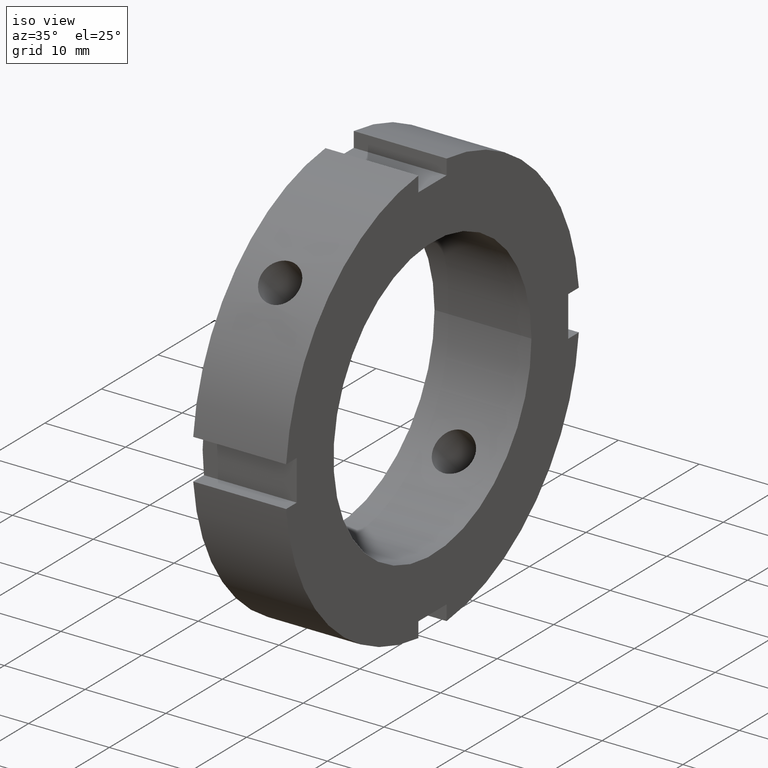
[diagram: clean part render]
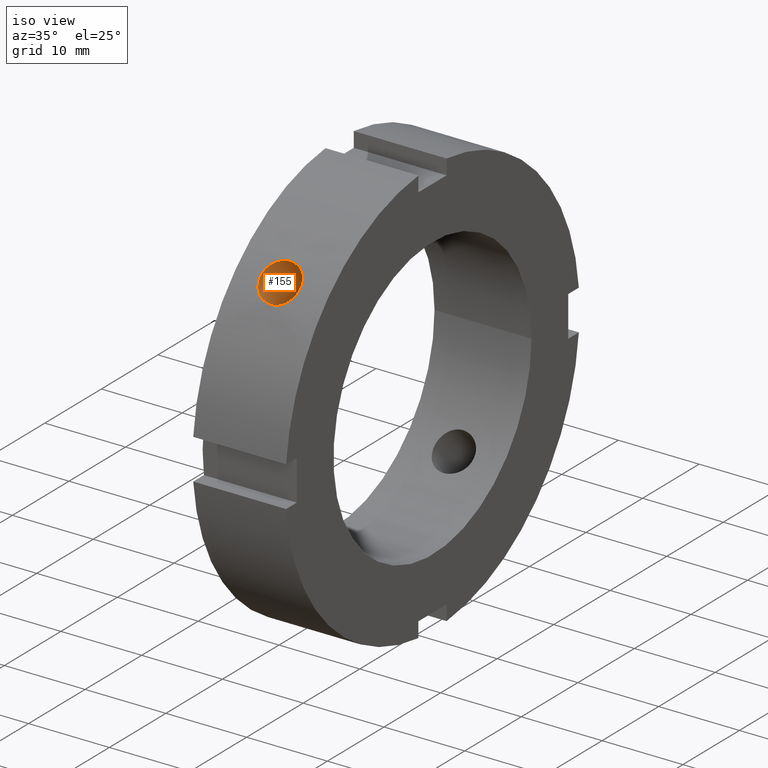
[diagram: same view with one face highlighted and labeled with its STEP entity id]
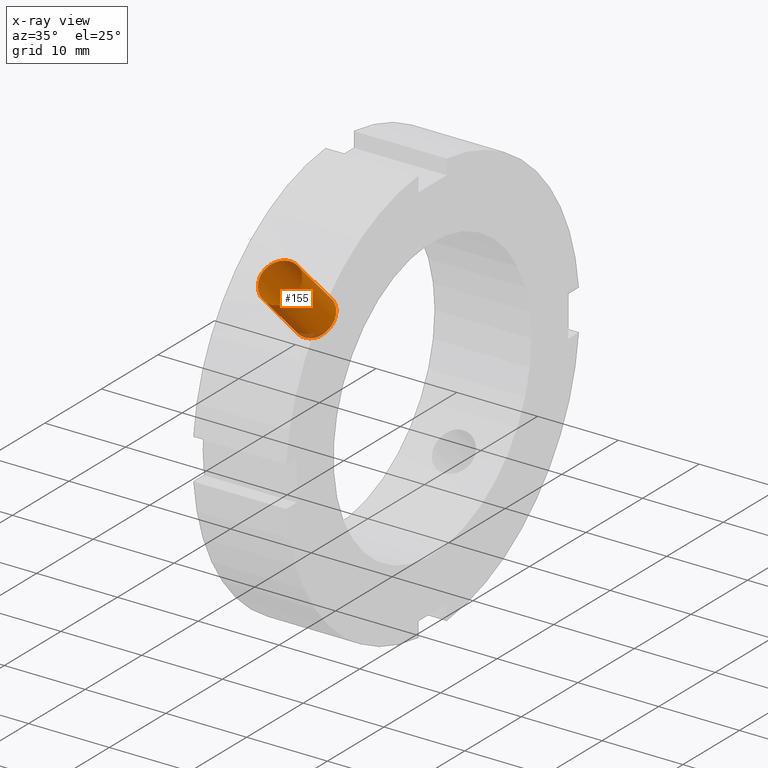
[diagram: x-ray of the same camera — body ghosted, the highlighted face saturated]
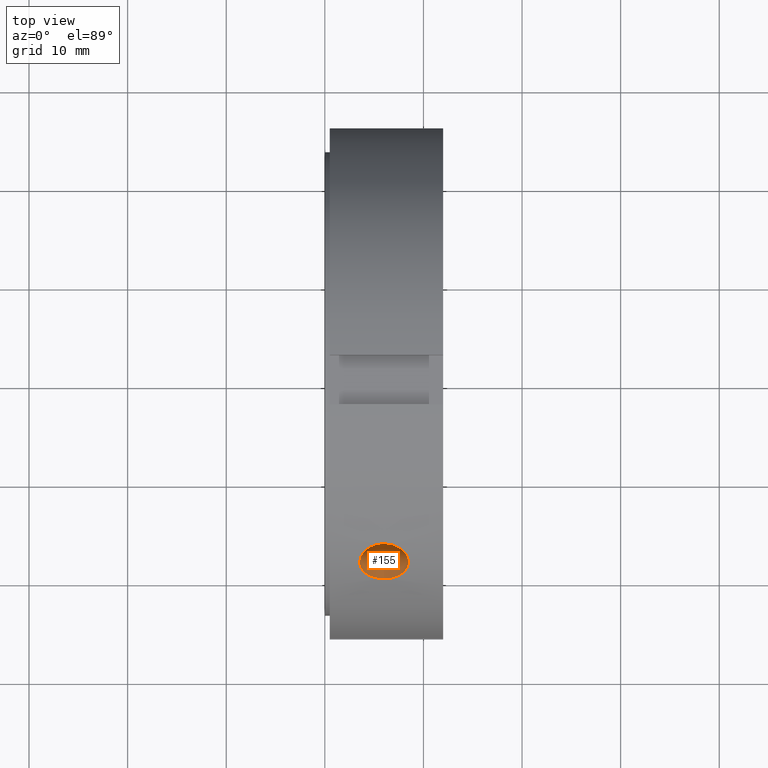
[diagram: same view with one face highlighted and labeled with its STEP entity id]
A machine part, iso view. The second image highlights one B-rep face of the part: STEP entity #155.
The next image is the same camera in x-ray: the body ghosted, the highlighted face saturated — about 2% of this face is hidden behind the body in this view.
A second angle (top view) of the same face is appended — the face is thin or edge-on in the first view.
In plain terms, the highlighted cylindrical surface (bore or boss wall) has radius 2.4585 mm, axis along (0, -0.7071, 0.7071).
Its self-contained STEP definition (entity closure, byte-faithful):
#68=CARTESIAN_POINT('',(5.999999999999996,-52.449976167773436,52.449976167773443));
#69=DIRECTION('',(0.0,-0.707106781186547,0.707106781186548));
#70=DIRECTION('',(1.0,0.0,0.0));
#71=AXIS2_PLACEMENT_3D('',#68,#69,#70);
#72=CYLINDRICAL_SURFACE('',#71,2.458500000000000);
#73=CARTESIAN_POINT('',(5.999999999999996,-20.040823199398080,16.563979156303827));
#74=VERTEX_POINT('',#73);
#75=CARTESIAN_POINT('',(5.999999999999996,-20.040823199398080,16.563979156303830));
#76=CARTESIAN_POINT('',(5.691106742669291,-20.040823199398080,16.563979156303830));
#77=CARTESIAN_POINT('',(5.361750952976142,-20.001457856660430,16.611970065652926));
#78=CARTESIAN_POINT('',(4.756082316381047,-19.839566068498726,16.804983903775465));
#79=CARTESIAN_POINT('',(4.479753694775820,-19.716820281860443,16.949773224856067));
#80=CARTESIAN_POINT('',(4.043402855219840,-19.428950078028400,17.278996296276979));
#81=CARTESIAN_POINT('',(3.854226504261467,-19.244556280755255,17.485390551896469));
#82=CARTESIAN_POINT('',(3.603269982171437,-18.831794989945763,17.929175291978918));
#83=CARTESIAN_POINT('',(3.541499999999997,-18.603196234016188,18.166356387684282));
#84=CARTESIAN_POINT('',(3.541499999999997,-18.166356387684278,18.603196234016195));
#85=CARTESIAN_POINT('',(3.603269982171439,-17.929175291978915,18.831794989945770));
#86=CARTESIAN_POINT('',(3.854226504261473,-17.485390551896462,19.244556280755262));
#87=CARTESIAN_POINT('',(4.043402855219838,-17.278996296276972,19.428950078028421));
#88=CARTESIAN_POINT('',(4.479753694775819,-16.949773224856060,19.716820281860457));
#89=CARTESIAN_POINT('',(4.756082316381050,-16.804983903775458,19.839566068498726));
#90=CARTESIAN_POINT('',(5.361750952976143,-16.611970065652923,20.001457856660430));
#91=CARTESIAN_POINT('',(5.691106742669293,-16.563979156303823,20.040823199398087));
#92=CARTESIAN_POINT('',(6.308893257330701,-16.563979156303823,20.040823199398087));
#93=CARTESIAN_POINT('',(6.638249047023852,-16.611970065652923,20.001457856660437));
#94=CARTESIAN_POINT('',(7.243917683618950,-16.804983903775462,19.839566068498726));
#95=CARTESIAN_POINT('',(7.520246305224175,-16.949773224856067,19.716820281860443));
#96=CARTESIAN_POINT('',(7.956597144780153,-17.278996296276979,19.428950078028400));
#97=CARTESIAN_POINT('',(8.145773495738526,-17.485390551896465,19.244556280755251));
#98=CARTESIAN_POINT('',(8.396730017828556,-17.929175291978915,18.831794989945763));
#99=CARTESIAN_POINT('',(8.458499999999997,-18.166356387684278,18.603196234016192));
#100=CARTESIAN_POINT('',(8.458499999999997,-18.603196234016188,18.166356387684282));
#101=CARTESIAN_POINT('',(8.396730017828556,-18.831794989945763,17.929175291978918));
#102=CARTESIAN_POINT('',(8.145773495738528,-19.244556280755251,17.485390551896469));
#103=CARTESIAN_POINT('',(7.956597144780153,-19.428950078028404,17.278996296276983));
#104=CARTESIAN_POINT('',(7.520246305224173,-19.716820281860443,16.949773224856067));
#105=CARTESIAN_POINT('',(7.243917683618947,-19.839566068498726,16.804983903775465));
#106=CARTESIAN_POINT('',(6.638249047023851,-20.001457856660430,16.611970065652926));
#107=CARTESIAN_POINT('',(6.308893257330701,-20.040823199398080,16.563979156303830));
#108=CARTESIAN_POINT('',(5.999999999999996,-20.040823199398080,16.563979156303830));
#109=B_SPLINE_CURVE_WITH_KNOTS('',3,(#75,#76,#77,#78,#79,#80,#81,#82,#83,#84,#85,#86,#87,#88,#89,#90,#91,#92,#93,#94,#95,#96,#97,#98,#99,#100,#101,#102,#103,#104,#105,#106,#107,#108),.UNSPECIFIED.,.T.,.U.,(4,2,2,2,2,2,2,2,2,2,2,2,2,2,2,2,4),(0.0,0.092667977199211,0.185335954398423,0.278003679688558,0.370671404978693,0.463339130268828,0.556006855558964,0.648674832758175,0.741342809957386,0.834010787156597,0.926678764355809,1.019346489645944,1.112014214936078,1.204681940226213,1.297349665516348,1.390017642715560,1.482685619914771),.UNSPECIFIED.);
#110=EDGE_CURVE('',#74,#74,#109,.T.);
#111=ORIENTED_EDGE('',*,*,#110,.F.);
#112=EDGE_LOOP('',(#111));
#113=FACE_OUTER_BOUND('',#112,.T.);
#114=CARTESIAN_POINT('',(5.999999999999996,-13.990070436148322,10.513226393054065));
#115=VERTEX_POINT('',#114);
#116=CARTESIAN_POINT('',(5.999999999999996,-13.990070436148322,10.513226393054069));
#117=CARTESIAN_POINT('',(6.309136367844465,-13.990070436148322,10.513226393054069));
#118=CARTESIAN_POINT('',(6.638594774737086,-13.952779678503134,10.563425703158488));
#119=CARTESIAN_POINT('',(7.244194969791113,-13.798510459345156,10.764159619258214));
#120=CARTESIAN_POINT('',(7.520372220973806,-13.681203346922988,10.914334361679456));
#121=CARTESIAN_POINT('',(7.956468904489081,-13.403621373137252,11.253486232226953));
#122=CARTESIAN_POINT('',(8.145609425942244,-13.224696436963438,11.465136695736440));
#123=CARTESIAN_POINT('',(8.396636219120584,-12.819538826253051,11.916433173590793));
#124=CARTESIAN_POINT('',(8.458499999999997,-12.592958167886831,12.155779173642323));
#125=CARTESIAN_POINT('',(8.458499999999996,-12.155779173642319,12.592958167886842));
#126=CARTESIAN_POINT('',(8.396636219120584,-11.916433173590782,12.819538826253059));
#127=CARTESIAN_POINT('',(8.145609425942237,-11.465136695736424,13.224696436963445));
#128=CARTESIAN_POINT('',(7.956468904489084,-11.253486232226940,13.403621373137266));
#129=CARTESIAN_POINT('',(7.520372220973803,-10.914334361679447,13.681203346923002));
#130=CARTESIAN_POINT('',(7.244194969791105,-10.764159619258214,13.798510459345160));
#131=CARTESIAN_POINT('',(6.638594774737079,-10.563425703158488,13.952779678503134));
#132=CARTESIAN_POINT('',(6.309136367844463,-10.513226393054062,13.990070436148326));
#133=CARTESIAN_POINT('',(5.690863632155530,-10.513226393054062,13.990070436148326));
#134=CARTESIAN_POINT('',(5.361405225262912,-10.563425703158487,13.952779678503134));
#135=CARTESIAN_POINT('',(4.755805030208885,-10.764159619258212,13.798510459345156));
#136=CARTESIAN_POINT('',(4.479627779026188,-10.914334361679447,13.681203346923002));
#137=CARTESIAN_POINT('',(4.043531095510908,-11.253486232226940,13.403621373137266));
#138=CARTESIAN_POINT('',(3.854390574057755,-11.465136695736424,13.224696436963445));
#139=CARTESIAN_POINT('',(3.603363780879410,-11.916433173590782,12.819538826253059));
#140=CARTESIAN_POINT('',(3.541499999999997,-12.155779173642319,12.592958167886842));
#141=CARTESIAN_POINT('',(3.541499999999995,-12.592958167886835,12.155779173642324));
#142=CARTESIAN_POINT('',(3.603363780879408,-12.819538826253051,11.916433173590793));
#143=CARTESIAN_POINT('',(3.854390574057749,-13.224696436963434,11.465136695736440));
#144=CARTESIAN_POINT('',(4.043531095510911,-13.403621373137252,11.253486232226955));
#145=CARTESIAN_POINT('',(4.479627779026187,-13.681203346922990,10.914334361679456));
#146=CARTESIAN_POINT('',(4.755805030208881,-13.798510459345156,10.764159619258214));
#147=CARTESIAN_POINT('',(5.361405225262911,-13.952779678503134,10.563425703158488));
#148=CARTESIAN_POINT('',(5.690863632155530,-13.990070436148322,10.513226393054069));
#149=CARTESIAN_POINT('',(5.999999999999996,-13.990070436148322,10.513226393054069));
#150=B_SPLINE_CURVE_WITH_KNOTS('',3,(#116,#117,#118,#119,#120,#121,#122,#123,#124,#125,#126,#127,#128,#129,#130,#131,#132,#133,#134,#135,#136,#137,#138,#139,#140,#141,#142,#143,#144,#145,#146,#147,#148,#149),.UNSPECIFIED.,.T.,.U.,(4,2,2,2,2,2,2,2,2,2,2,2,2,2,2,2,4),(0.0,0.092740910353340,0.185481820706681,0.278221490133464,0.370961159560247,0.463700828987030,0.556440498413814,0.649181408767154,0.741922319120494,0.834663229473834,0.927404139827174,1.020143809253957,1.112883478680741,1.205623148107524,1.298362817534307,1.391103727887647,1.483844638240988),.UNSPECIFIED.);
#151=EDGE_CURVE('',#115,#115,#150,.T.);
#152=ORIENTED_EDGE('',*,*,#151,.F.);
#153=EDGE_LOOP('',(#152));
#154=FACE_BOUND('',#153,.T.);
#155=ADVANCED_FACE('',(#113,#154),#72,.F.);